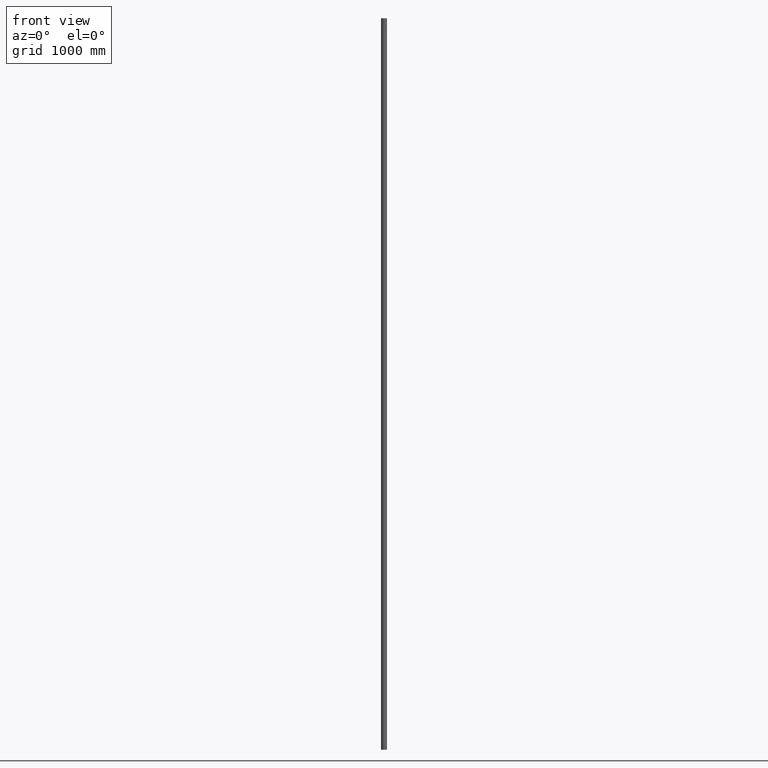
[diagram: clean part render]
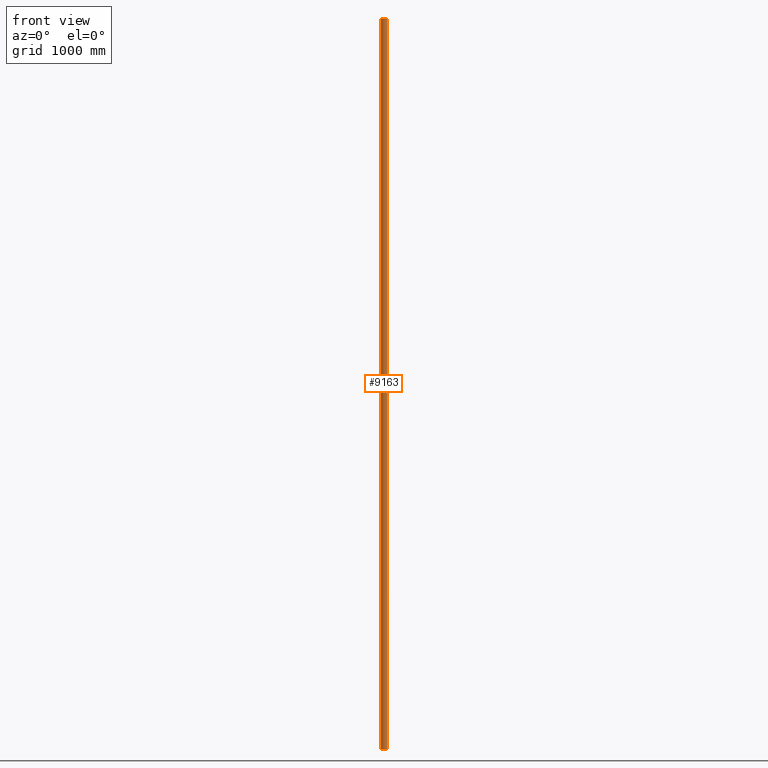
[diagram: same view with one face highlighted and labeled with its STEP entity id]
A machine part, front view. The second image highlights one B-rep face of the part: STEP entity #9163.
In plain terms, the highlighted cylindrical surface (bore or boss wall) has radius 24.15 mm, axis along (-0, -0, -1).
Its self-contained STEP definition (entity closure, byte-faithful):
#720 = CYLINDRICAL_SURFACE ( 'NONE', #8131, 24.14999999999999858 ) ;
#1960 = FACE_OUTER_BOUND ( 'NONE', #3678, .T. ) ;
#2184 = EDGE_LOOP ( 'NONE', ( #10060 ) ) ;
#2686 = AXIS2_PLACEMENT_3D ( 'NONE', #5221, #10022, #6021 ) ;
#2876 = AXIS2_PLACEMENT_3D ( 'NONE', #5674, #12671, #6995 ) ;
#2962 = CARTESIAN_POINT ( 'NONE',  ( 0.000000000000000000, 0.000000000000000000, 3000.000000000000000 ) ) ;
#3358 = EDGE_CURVE ( 'NONE', #6842, #6842, #8261, .T. ) ;
#3678 = EDGE_LOOP ( 'NONE', ( #10785 ) ) ;
#5221 = CARTESIAN_POINT ( 'NONE',  ( 0.000000000000000000, 0.000000000000000000, -3000.000000000000000 ) ) ;
#5577 = CIRCLE ( 'NONE', #2876, 24.14999999999999858 ) ;
#5674 = CARTESIAN_POINT ( 'NONE',  ( 0.000000000000000000, 0.000000000000000000, 3000.000000000000000 ) ) ;
#6021 = DIRECTION ( 'NONE',  ( 1.000000000000000000, 0.000000000000000000, 0.000000000000000000 ) ) ;
#6842 = VERTEX_POINT ( 'NONE', #10509 ) ;
#6995 = DIRECTION ( 'NONE',  ( 1.000000000000000000, 0.000000000000000000, 0.000000000000000000 ) ) ;
#7557 = EDGE_CURVE ( 'NONE', #11478, #11478, #5577, .T. ) ;
#7890 = DIRECTION ( 'NONE',  ( -0.000000000000000000, -0.000000000000000000, -1.000000000000000000 ) ) ;
#8131 = AXIS2_PLACEMENT_3D ( 'NONE', #2962, #7890, #10905 ) ;
#8261 = CIRCLE ( 'NONE', #2686, 24.14999999999999858 ) ;
#8514 = CARTESIAN_POINT ( 'NONE',  ( 24.14999999999999858, 0.000000000000000000, 3000.000000000000000 ) ) ;
#9163 = ADVANCED_FACE ( 'NONE', ( #1960, #12214 ), #720, .T. ) ;
#10022 = DIRECTION ( 'NONE',  ( 0.000000000000000000, 0.000000000000000000, 1.000000000000000000 ) ) ;
#10060 = ORIENTED_EDGE ( 'NONE', *, *, #3358, .T. ) ;
#10509 = CARTESIAN_POINT ( 'NONE',  ( 24.14999999999999858, 0.000000000000000000, -3000.000000000000000 ) ) ;
#10785 = ORIENTED_EDGE ( 'NONE', *, *, #7557, .F. ) ;
#10905 = DIRECTION ( 'NONE',  ( -1.000000000000000000, 0.000000000000000000, 0.000000000000000000 ) ) ;
#11478 = VERTEX_POINT ( 'NONE', #8514 ) ;
#12214 = FACE_OUTER_BOUND ( 'NONE', #2184, .T. ) ;
#12671 = DIRECTION ( 'NONE',  ( 0.000000000000000000, 0.000000000000000000, 1.000000000000000000 ) ) ;